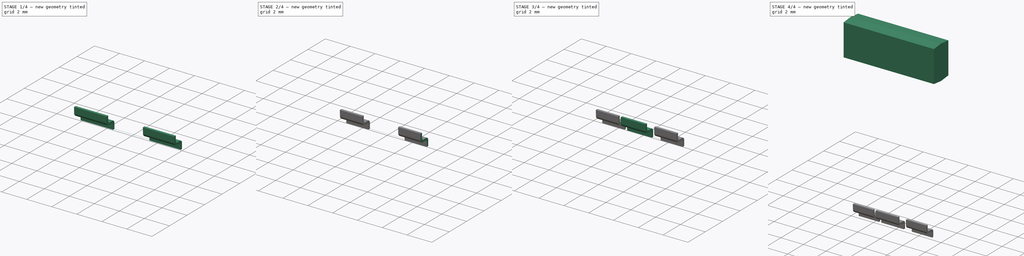
[diagram: build sequence overview — one tinted view per stage of 4, left to right]
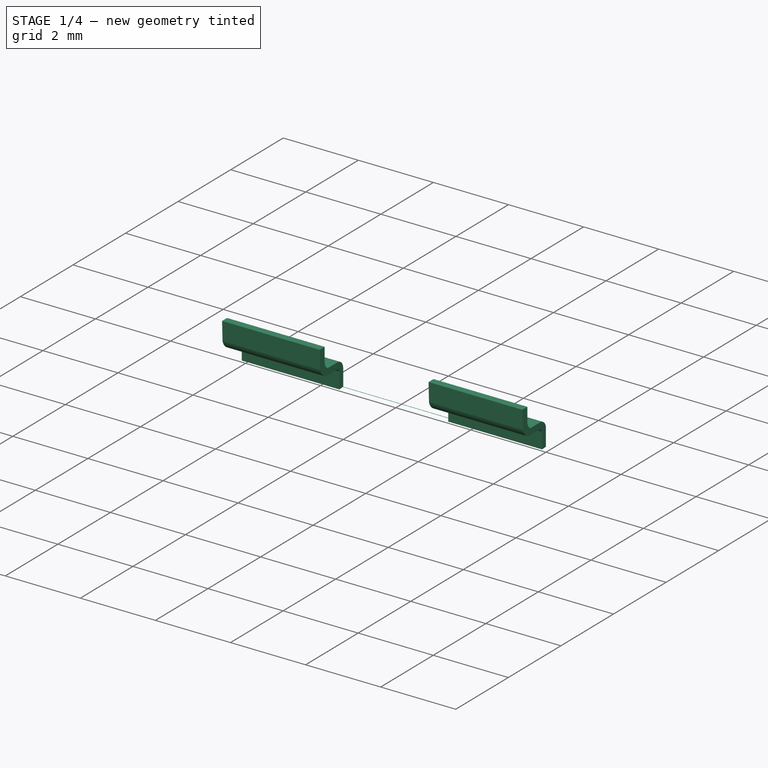
[diagram: stage 1 of 4 — iso view after this stage's code; geometry added in this stage tinted green]
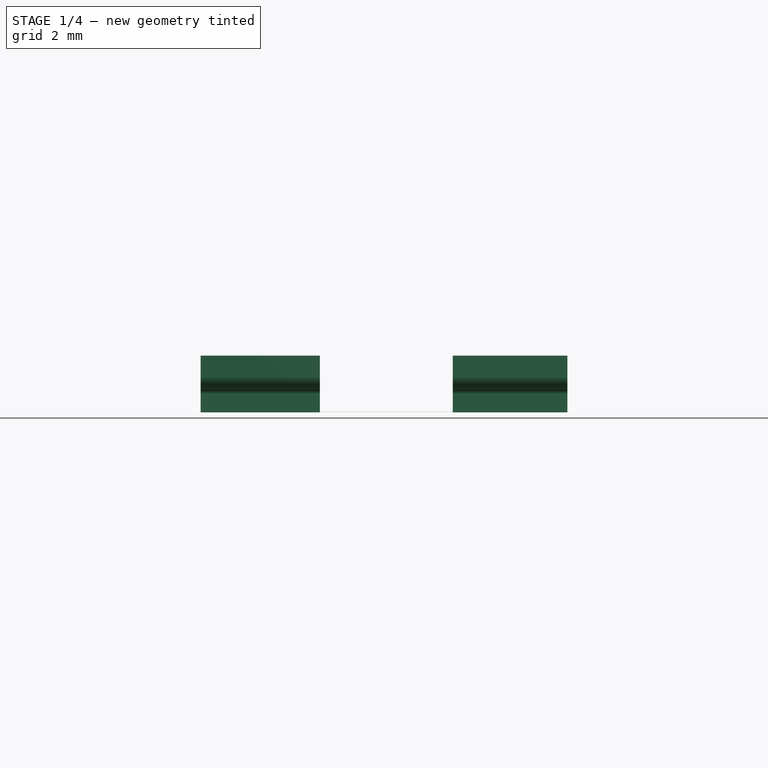
[diagram: stage 1 of 4 — front view after this stage's code; geometry added in this stage tinted green]
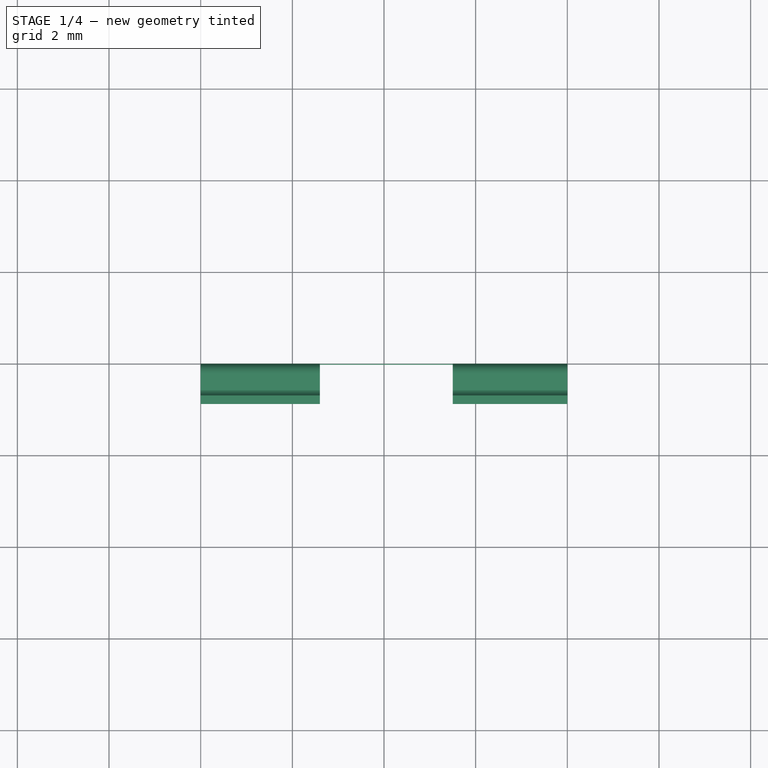
[diagram: stage 1 of 4 — top view after this stage's code; geometry added in this stage tinted green]
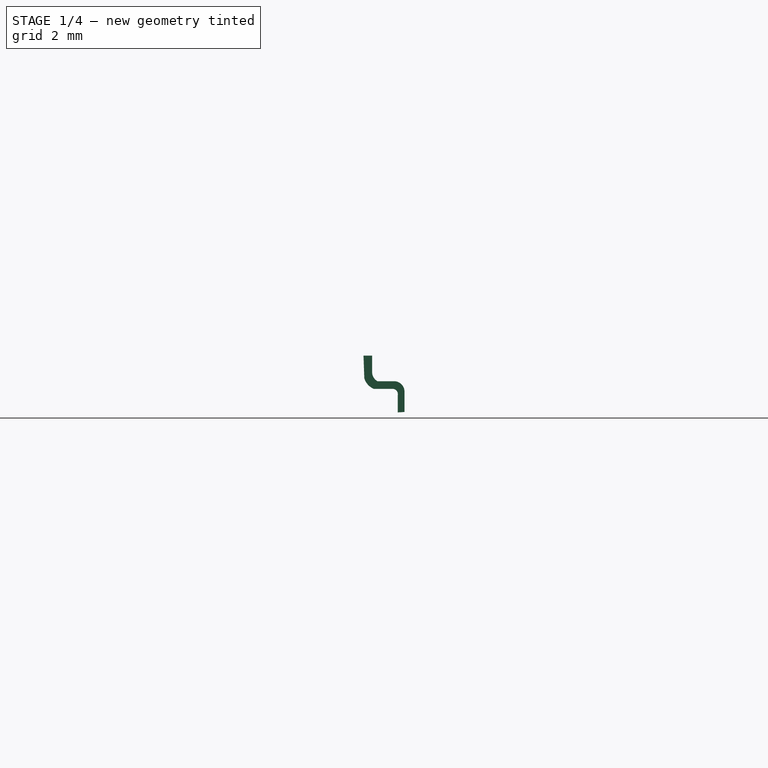
[diagram: stage 1 of 4 — right view after this stage's code; geometry added in this stage tinted green]
FCSTD DOCUMENT  (FreeCAD 1.0R39319 (Git))
Label: diods
License: All rights reserved
LicenseURL: https://en.wikipedia.org/wiki/All_rights_reserved
objects: PartDesign::SubtractiveBox×5, Sketcher::SketchObject×3, PartDesign::Pad×3, PartDesign::Body×3, PartDesign::Mirrored×1
note: 35 computed .brp shape members not serialized (recipe doc carries the construction recipe); baked Part::Feature solids carry a one-line shape summary decoded from their .brp

FEATURE [PartDesign::Body] Body003  label="Тіло003"
  AllowCompound = false
  Group = -> [Sketch,Pad001,Box,Box001]
  Origin = -> Origin003
  Tip = -> Box001
FEATURE [Sketcher::SketchObject] Sketch005
  ArcFitTolerance = 1e-06
  AttachmentSupport = -> [YZ_Plane004]
  FullyConstrained = false
  MakeInternals = false
  MapMode = 5
  Placement = pos=(0,0,0) rot=(0.57735,0.57735,0.57735;2.0944rad)
  sketch-geometry (12):
    g0: LineSegment StartX=0 StartY=2.68829 StartZ=0 EndX=0 EndY=3.12847 EndZ=0
    g1: LineSegment StartX=0 StartY=2.68829 StartZ=0 EndX=-0.146011 EndY=2.67889 EndZ=0
    g2: LineSegment StartX=-0.146011 StartY=2.67889 StartZ=0 EndX=-0.146011 EndY=3.05966 EndZ=0
    g3: ArcOfCircle CenterX=-0.225243 CenterY=3.13388 CenterZ=0 NormalX=0 NormalY=0 NormalZ=1 AngleXU=0 Radius=0.225308 StartAngle=6.25916 EndAngle=7.79873
    g4: ArcOfCircle CenterX=-0.263022 CenterY=3.07521 CenterZ=0 NormalX=0 NormalY=0 NormalZ=1 AngleXU=0 Radius=0.118039 StartAngle=6.15107 EndAngle=7.65604
    g5: LineSegment StartX=-0.23981 StartY=3.19094 StartZ=0 EndX=-0.664558 EndY=3.19094 EndZ=0
    g6: LineSegment StartX=-0.212801 StartY=3.35885 StartZ=0 EndX=-0.587378 EndY=3.35885 EndZ=0
    g7: ArcOfCircle CenterX=-0.53487 CenterY=3.52174 CenterZ=0 NormalX=0 NormalY=0 NormalZ=1 AngleXU=0 Radius=0.355312 StartAngle=3.41098 EndAngle=4.33876
    g8: ArcOfCircle CenterX=-0.482583 CenterY=3.55683 CenterZ=0 NormalX=0 NormalY=0 NormalZ=1 AngleXU=0 Radius=0.22401 StartAngle=3.06866 EndAngle=4.22557
    g9: LineSegment StartX=-0.705997 StartY=3.57316 StartZ=0 EndX=-0.705997 EndY=3.91819 EndZ=0
    g10: LineSegment StartX=-0.705997 StartY=3.91819 StartZ=0 EndX=-0.894517 EndY=3.91819 EndZ=0
    g11: LineSegment StartX=-0.894517 StartY=3.91819 StartZ=0 EndX=-0.877367 EndY=3.42718 EndZ=0
  constraints (19):
    c: PointOnObject(g0,g-2)
    c: PointOnObject(g0,g-2)
    c: Coincident(g1,g0)
    c: Coincident(g2,g1)
    c: Vertical(g2)
    c: Coincident(g3,g0)
    c: Coincident(g4,g2)
    c: Coincident(g5,g4)
    c: Horizontal(g5)
    c: Coincident(g6,g3)
    c: Horizontal(g6)
    c: Coincident(g7,g5)
    c: Coincident(g8,g6)
    c: Coincident(g9,g8)
    c: Vertical(g9)
    c: Coincident(g10,g9)
    c: Horizontal(g10)
    c: Coincident(g11,g10)
    c: Coincident(g11,g7)
FEATURE [PartDesign::Pad] Pad002
  Direction = (1,0,0)
  Length = 8
  Length2 = 10
  Placement = pos=(0,0,0) rot=(1,1,1;2.0944rad)
  Profile = -> Sketch005
  ReferenceAxis = -> Sketch005 [N_Axis]
  Refine = true
  Suppressed = false
  Type = 0
FEATURE [PartDesign::SubtractiveBox] Box002
  AttacherType = Attacher::AttachEngine3D
  AttachmentOffset = pos=(0,-1.4,-1) rot=(0,-1,0;0.628319rad)
  AttachmentSupport = -> [Pad002]
  BaseFeature = -> Pad002
  Height = 4
  Length = 3
  MapMode = 45
  Placement = pos=(2.6,-0.810178,2.59357) rot=(-0.553387,-0.553387,-0.622516;2.02797rad)
  Refine = true
  Suppressed = false
  Width = 2.9
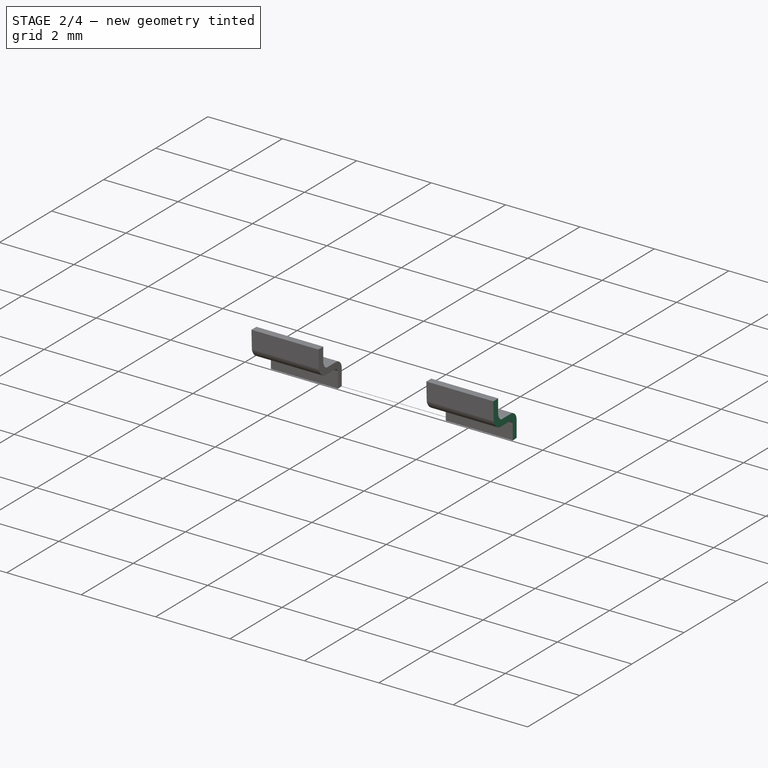
[diagram: stage 2 of 4 — iso view after this stage's code; geometry added in this stage tinted green]
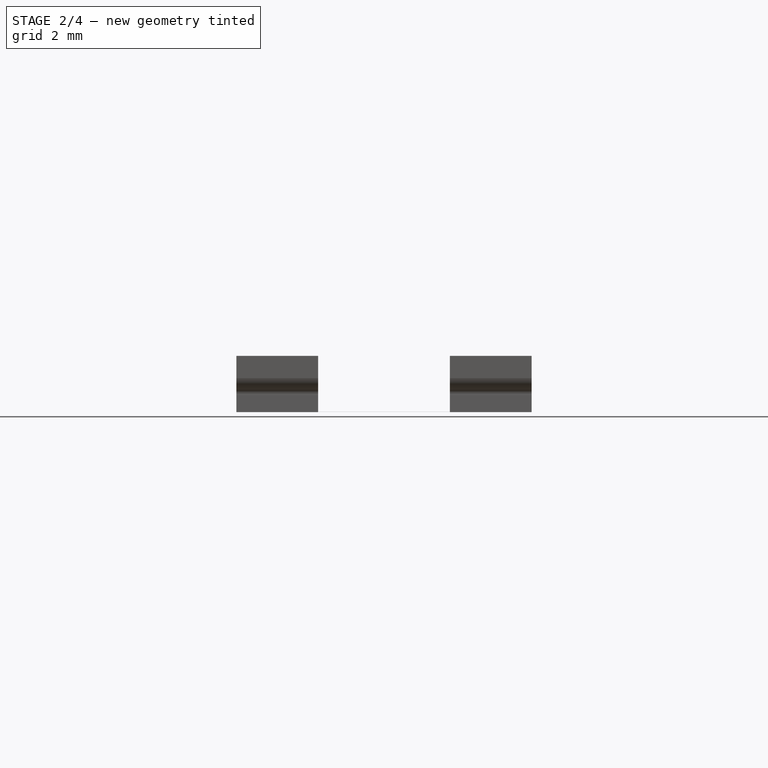
[diagram: stage 2 of 4 — front view after this stage's code; geometry added in this stage tinted green]
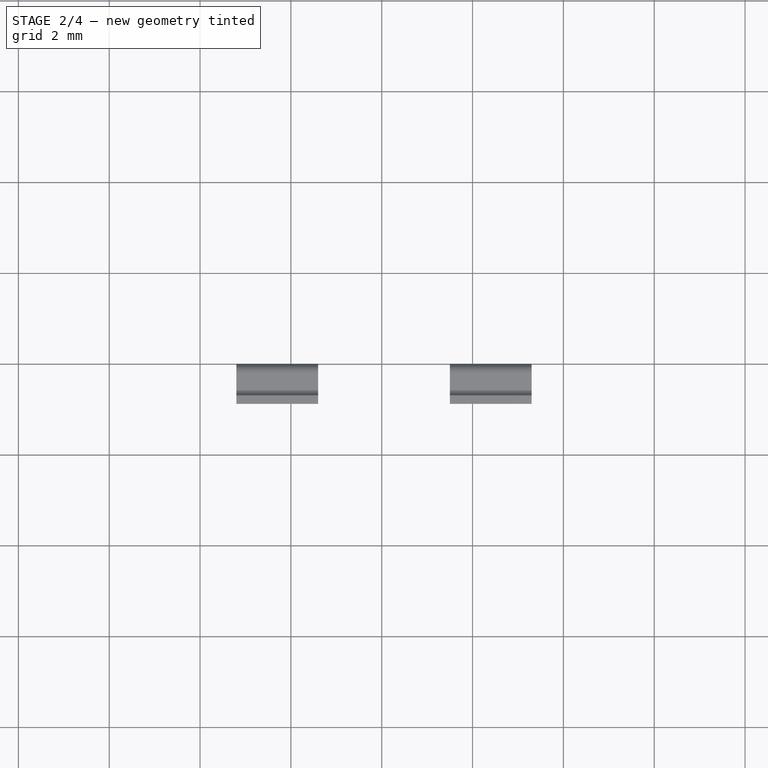
[diagram: stage 2 of 4 — top view after this stage's code; geometry added in this stage tinted green]
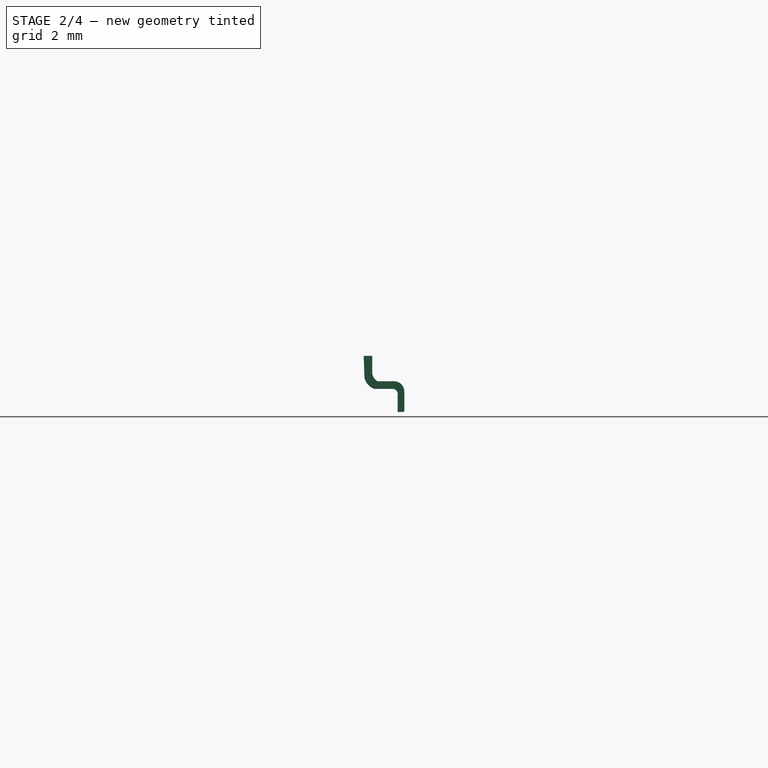
[diagram: stage 2 of 4 — right view after this stage's code; geometry added in this stage tinted green]
FEATURE [PartDesign::SubtractiveBox] Box003
  AttacherType = Attacher::AttachEngine3D
  AttachmentOffset = pos=(-2,-2,-0.8) rot=(0,0,1;0rad)
  AttachmentSupport = -> [Box002]
  BaseFeature = -> Box002
  Height = 2.5
  Length = 3
  MapMode = 7
  Placement = pos=(0.8,1.10548,1.91819) rot=(0.57735,-0.57735,-0.57735;2.0944rad)
  Refine = true
  Suppressed = false
  Width = 2
FEATURE [PartDesign::SubtractiveBox] Box004
  AttacherType = Attacher::AttachEngine3D
  AttachmentOffset = pos=(-3,-2,-2.8) rot=(0,0,1;0rad)
  AttachmentSupport = -> [Box003]
  BaseFeature = -> Box003
  Height = 1
  Length = 5
  MapMode = 7
  Placement = pos=(8.3,2.10548,1.91819) rot=(0.57735,-0.57735,-0.57735;2.0944rad)
  Refine = true
  Suppressed = false
  Width = 2
FEATURE [PartDesign::Body] Body004  label="Тіло004"
  AllowCompound = false
  Group = -> [Sketch005,Pad002,Box002,Box003,Box004]
  Origin = -> Origin004
  Placement = pos=(8,0,2.6) rot=(0,1,0;3.14159rad)
  Tip = -> Box004
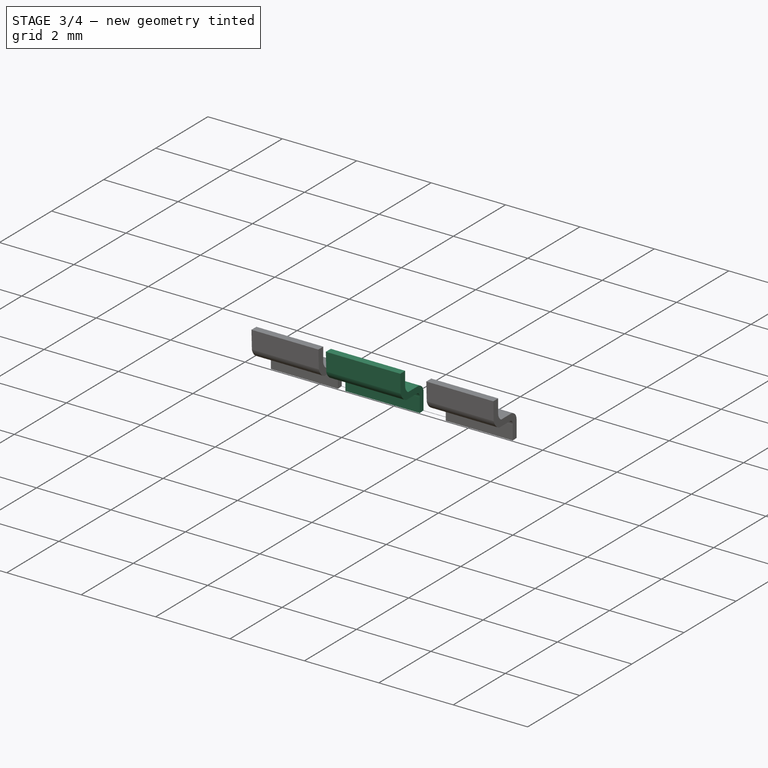
[diagram: stage 3 of 4 — iso view after this stage's code; geometry added in this stage tinted green]
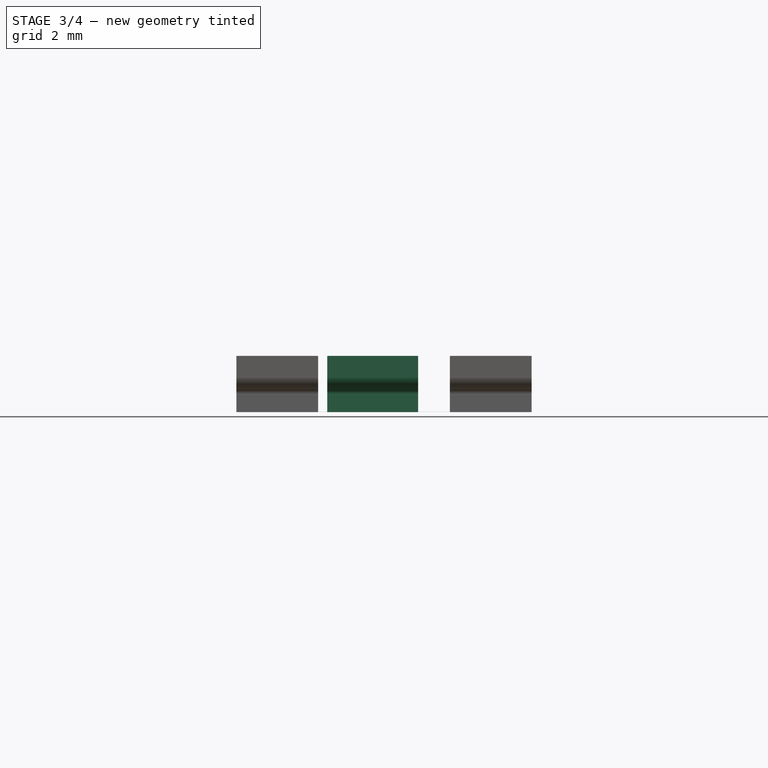
[diagram: stage 3 of 4 — front view after this stage's code; geometry added in this stage tinted green]
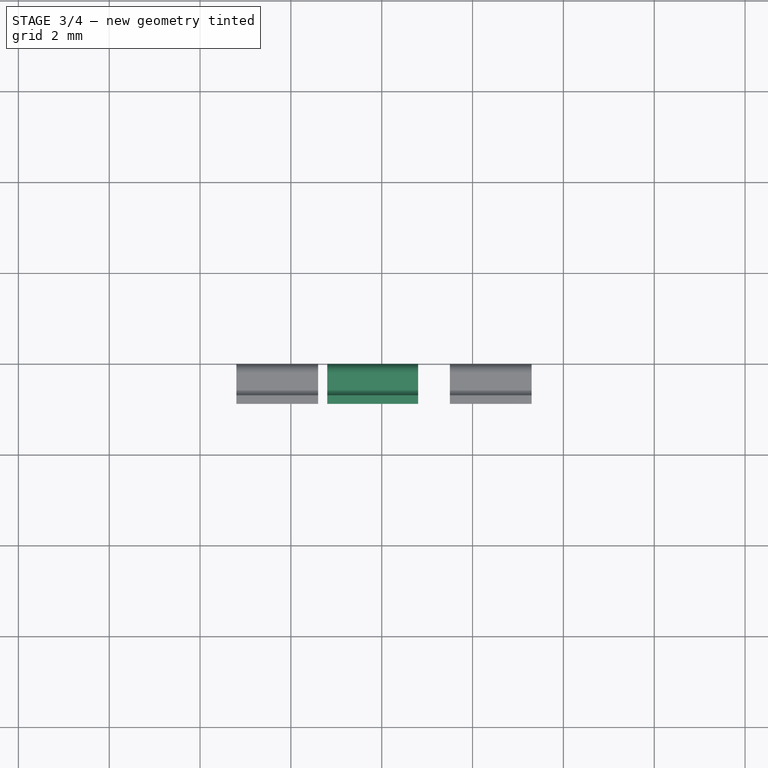
[diagram: stage 3 of 4 — top view after this stage's code; geometry added in this stage tinted green]
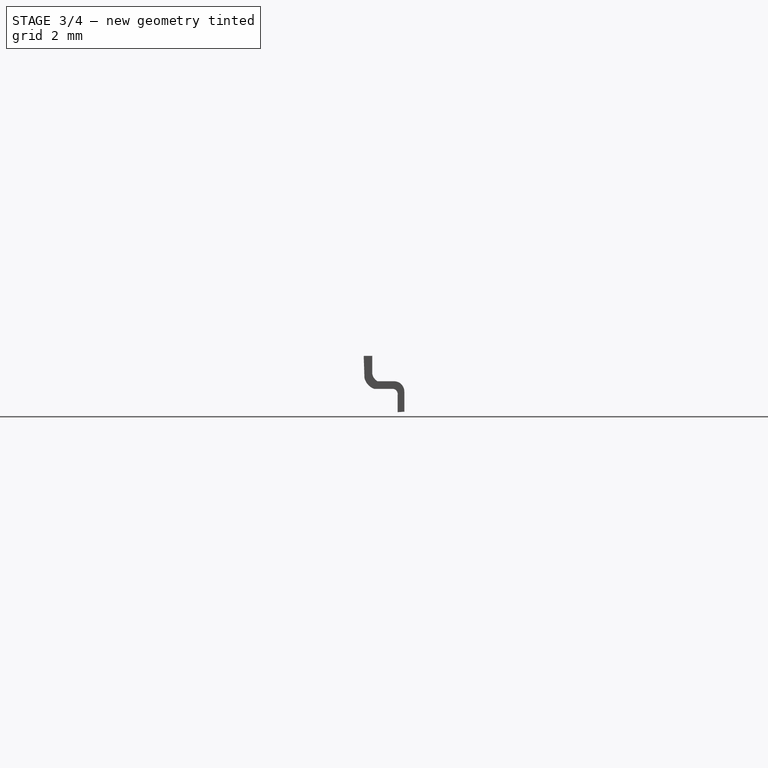
[diagram: stage 3 of 4 — right view after this stage's code; geometry added in this stage tinted green]
FEATURE [PartDesign::Body] Body001  label="Тіло001"
  AllowCompound = false
  Group = -> [Sketch004,Pad,Mirrored]
  Origin = -> Origin001
  Placement = pos=(0,0,-15.66) rot=(0,0,1;0rad)
  Tip = -> Mirrored
FEATURE [Sketcher::SketchObject] Sketch
  ArcFitTolerance = 1e-06
  AttachmentSupport = -> [YZ_Plane003]
  FullyConstrained = false
  MakeInternals = false
  MapMode = 5
  Placement = pos=(0,0,0) rot=(0.57735,0.57735,0.57735;2.0944rad)
  sketch-geometry (12):
    g0: LineSegment StartX=0 StartY=2.68829 StartZ=0 EndX=0 EndY=3.12847 EndZ=0
    g1: LineSegment StartX=0 StartY=2.68829 StartZ=0 EndX=-0.146011 EndY=2.67889 EndZ=0
    g2: LineSegment StartX=-0.146011 StartY=2.67889 StartZ=0 EndX=-0.146011 EndY=3.05966 EndZ=0
    g3: ArcOfCircle CenterX=-0.225243 CenterY=3.13388 CenterZ=0 NormalX=0 NormalY=0 NormalZ=1 AngleXU=0 Radius=0.225308 StartAngle=6.25916 EndAngle=7.79873
    g4: ArcOfCircle CenterX=-0.263022 CenterY=3.07521 CenterZ=0 NormalX=0 NormalY=0 NormalZ=1 AngleXU=0 Radius=0.118039 StartAngle=6.15107 EndAngle=7.65604
    g5: LineSegment StartX=-0.23981 StartY=3.19094 StartZ=0 EndX=-0.664558 EndY=3.19094 EndZ=0
    g6: LineSegment StartX=-0.212801 StartY=3.35885 StartZ=0 EndX=-0.587378 EndY=3.35885 EndZ=0
    g7: ArcOfCircle CenterX=-0.53487 CenterY=3.52174 CenterZ=0 NormalX=0 NormalY=0 NormalZ=1 AngleXU=0 Radius=0.355312 StartAngle=3.41098 EndAngle=4.33876
    g8: ArcOfCircle CenterX=-0.482583 CenterY=3.55683 CenterZ=0 NormalX=0 NormalY=0 NormalZ=1 AngleXU=0 Radius=0.22401 StartAngle=3.06866 EndAngle=4.22557
    g9: LineSegment StartX=-0.705997 StartY=3.57316 StartZ=0 EndX=-0.705997 EndY=3.91819 EndZ=0
    g10: LineSegment StartX=-0.705997 StartY=3.91819 StartZ=0 EndX=-0.894517 EndY=3.91819 EndZ=0
    g11: LineSegment StartX=-0.894517 StartY=3.91819 StartZ=0 EndX=-0.877367 EndY=3.42718 EndZ=0
  constraints (19):
    c: PointOnObject(g0,g-2)
    c: PointOnObject(g0,g-2)
    c: Coincident(g1,g0)
    c: Coincident(g2,g1)
    c: Vertical(g2)
    c: Coincident(g3,g0)
    c: Coincident(g4,g2)
    c: Coincident(g5,g4)
    c: Horizontal(g5)
    c: Coincident(g6,g3)
    c: Horizontal(g6)
    c: Coincident(g7,g5)
    c: Coincident(g8,g6)
    c: Coincident(g9,g8)
    c: Vertical(g9)
    c: Coincident(g10,g9)
    c: Horizontal(g10)
    c: Coincident(g11,g10)
    c: Coincident(g11,g7)
FEATURE [PartDesign::Pad] Pad001
  Direction = (1,0,0)
  Length = 8
  Length2 = 10
  Placement = pos=(0,0,0) rot=(1,1,1;2.0944rad)
  Profile = -> Sketch
  ReferenceAxis = -> Sketch [N_Axis]
  Refine = true
  Suppressed = false
  Type = 0
FEATURE [PartDesign::SubtractiveBox] Box
  AttacherType = Attacher::AttachEngine3D
  AttachmentOffset = pos=(-1,-0.5,-2.8) rot=(0,0,1;0rad)
  AttachmentSupport = -> [Pad001]
  BaseFeature = -> Pad001
  Height = 3.5
  Length = 3
  MapMode = 7
  Placement = pos=(2.8,1,2.62847) rot=(0.57735,-0.57735,-0.57735;2.0944rad)
  Refine = true
  Suppressed = false
  Width = 3
FEATURE [PartDesign::SubtractiveBox] Box001
  AttacherType = Attacher::AttachEngine3D
  AttachmentOffset = pos=(-1.5,-3,-5.5) rot=(0,0,1;0rad)
  AttachmentSupport = -> [Box]
  BaseFeature = -> Box
  Height = 3.5
  Length = 2
  MapMode = 7
  Placement = pos=(8.3,0.605483,0.91819) rot=(0.57735,-0.57735,-0.57735;2.0944rad)
  Refine = true
  Suppressed = false
  Width = 3
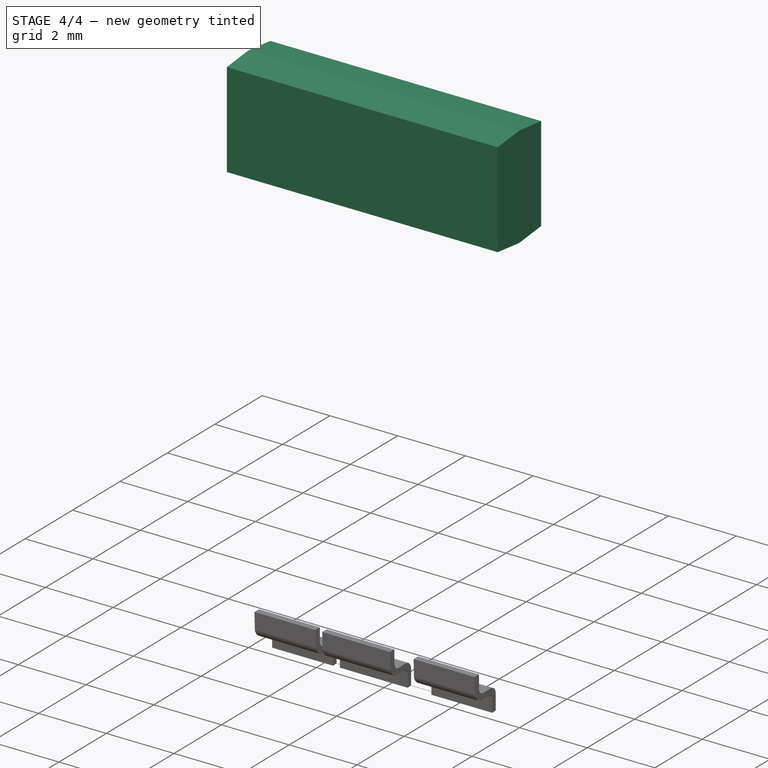
[diagram: stage 4 of 4 — iso view after this stage's code; geometry added in this stage tinted green]
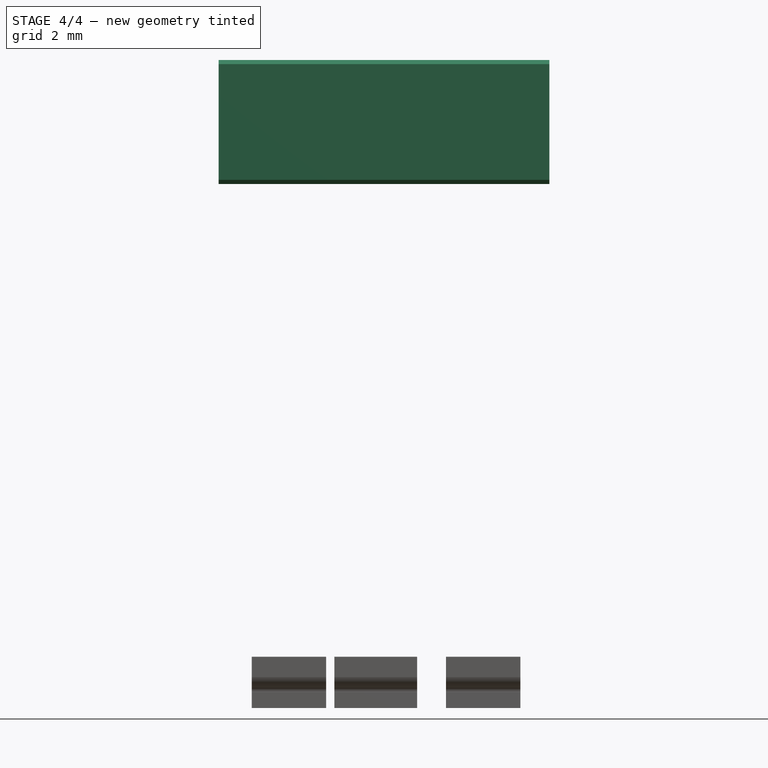
[diagram: stage 4 of 4 — front view after this stage's code; geometry added in this stage tinted green]
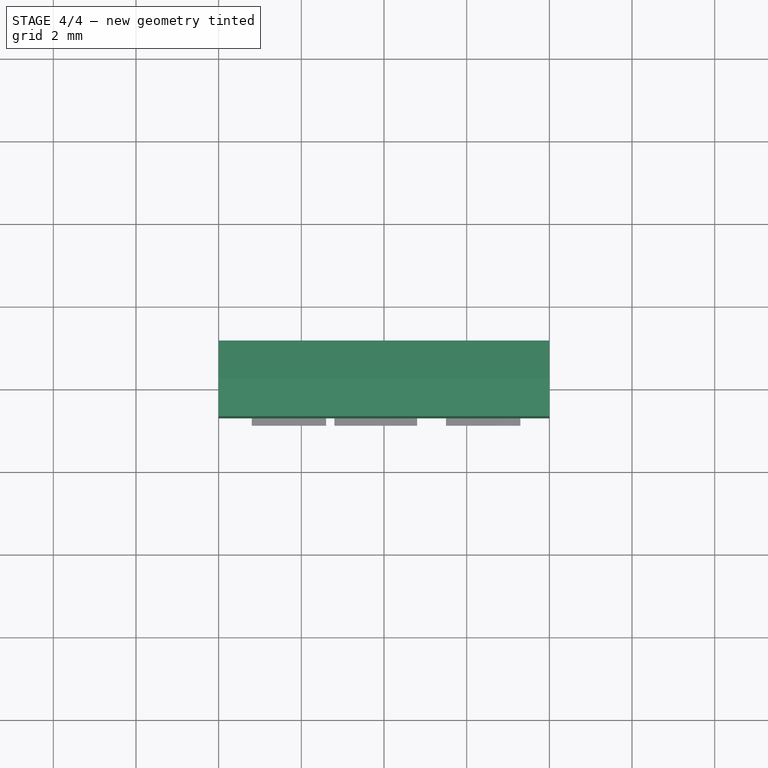
[diagram: stage 4 of 4 — top view after this stage's code; geometry added in this stage tinted green]
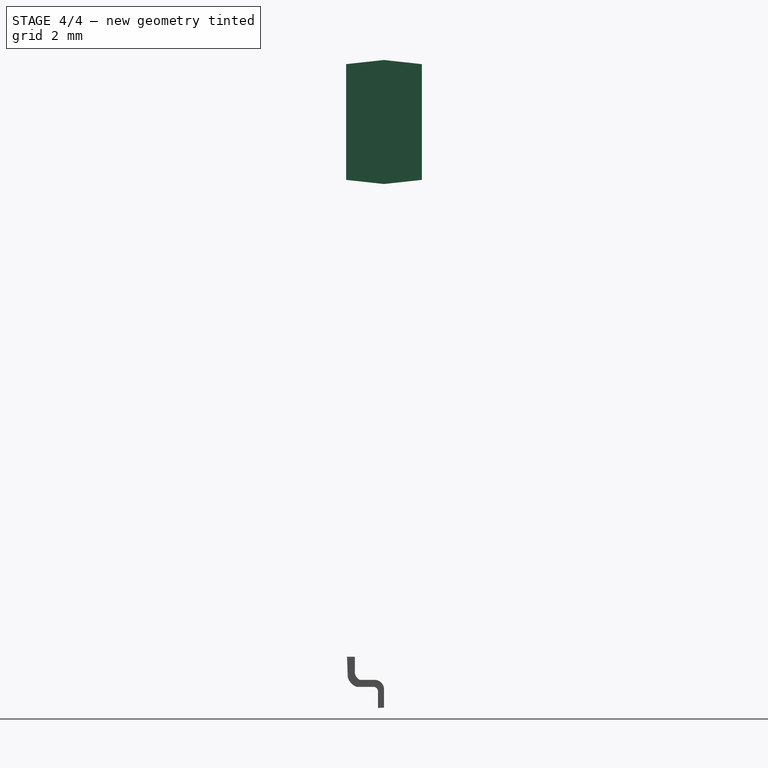
[diagram: stage 4 of 4 — right view after this stage's code; geometry added in this stage tinted green]
FEATURE [Sketcher::SketchObject] Sketch004
  ArcFitTolerance = 1e-06
  AttachmentSupport = -> [YZ_Plane001]
  FullyConstrained = false
  MakeInternals = false
  MapMode = 5
  Placement = pos=(0,0,0) rot=(0.57735,0.57735,0.57735;2.0944rad)
  sketch-geometry (4):
    g0: LineSegment StartX=0 StartY=18.3554 StartZ=0 EndX=0 EndY=15.3554 EndZ=0
    g1: LineSegment StartX=0.916609 StartY=18.2554 StartZ=0 EndX=0 EndY=18.3554 EndZ=0
    g2: LineSegment StartX=0.916609 StartY=18.2554 StartZ=0 EndX=0.916609 EndY=15.4554 EndZ=0
    g3: LineSegment StartX=0.916609 StartY=15.4554 StartZ=0 EndX=0 EndY=15.3554 EndZ=0
  constraints (9):
    c: Distance(g0) = 3
    c: PointOnObject(g0,g-2)
    c: PointOnObject(g0,g-2)
    c: Coincident(g1,g0)
    c: Distance(g2) = 2.8
    c: Vertical(g2)
    c: Coincident(g2,g1)
    c: Coincident(g3,g2)
    c: Coincident(g3,g0)
FEATURE [PartDesign::Pad] Pad
  Direction = (1,0,0)
  Length = 8
  Length2 = 10
  Placement = pos=(0,0,0) rot=(1,1,1;2.0944rad)
  Profile = -> Sketch004
  ReferenceAxis = -> Sketch004 [N_Axis]
  Refine = true
  Suppressed = false
  Type = 0
FEATURE [PartDesign::Mirrored] Mirrored
  BaseFeature = -> Pad
  MirrorPlane = -> Sketch004 [V_Axis]
  Originals = -> [Pad]
  Placement = pos=(0,0,0) rot=(1,1,1;2.0944rad)
  Refine = true
  Suppressed = false
  TransformMode = 0
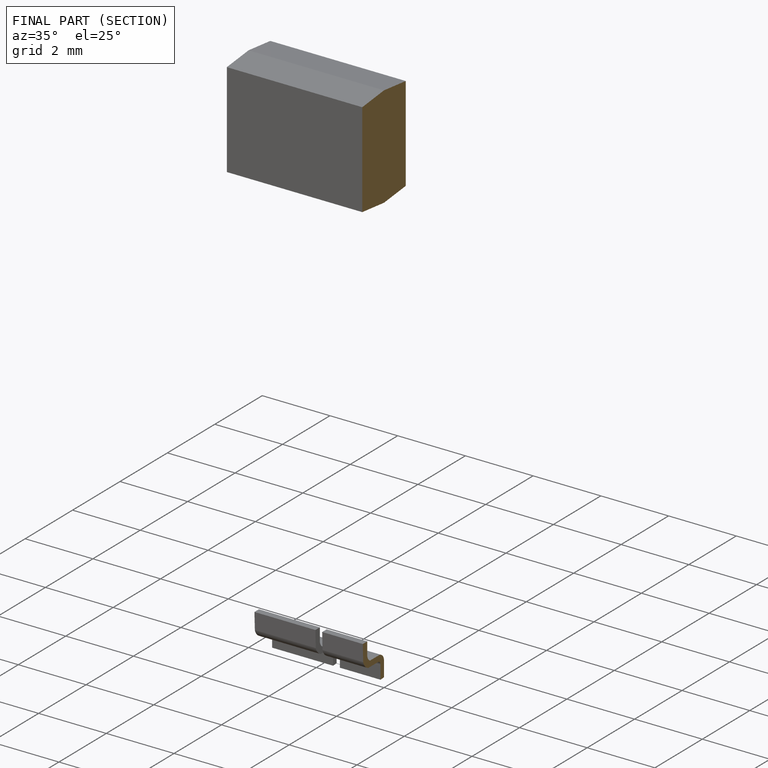
[diagram: finished part — half-section view (interior)]
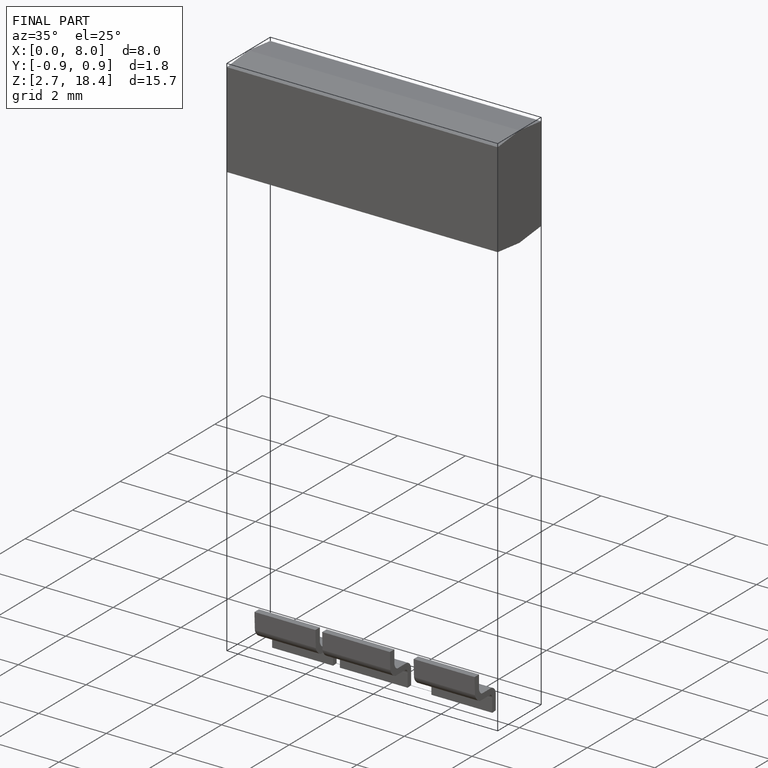
[diagram: finished part — iso view with bounding-box wireframe]
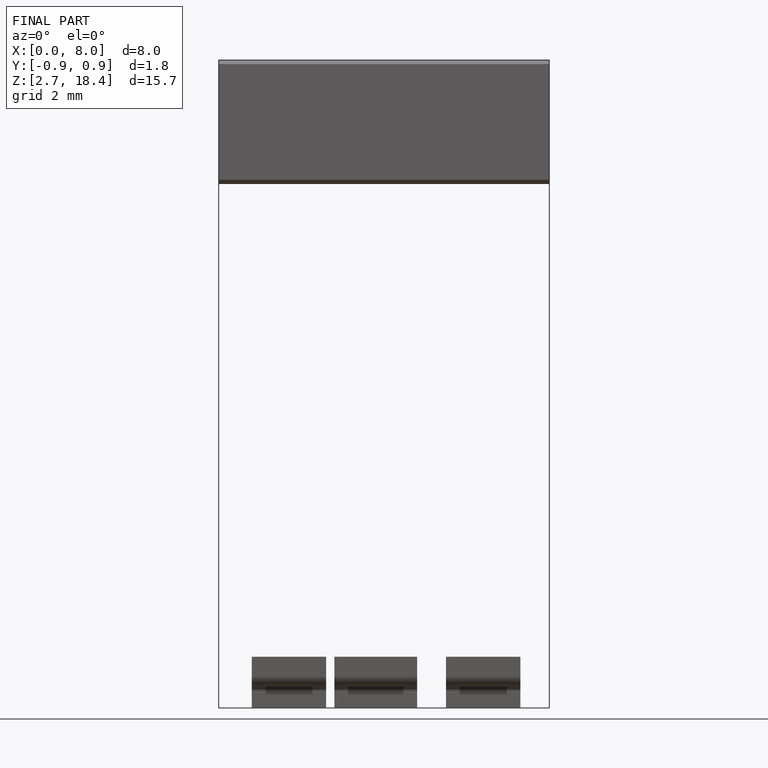
[diagram: finished part — front view with bounding-box wireframe]
